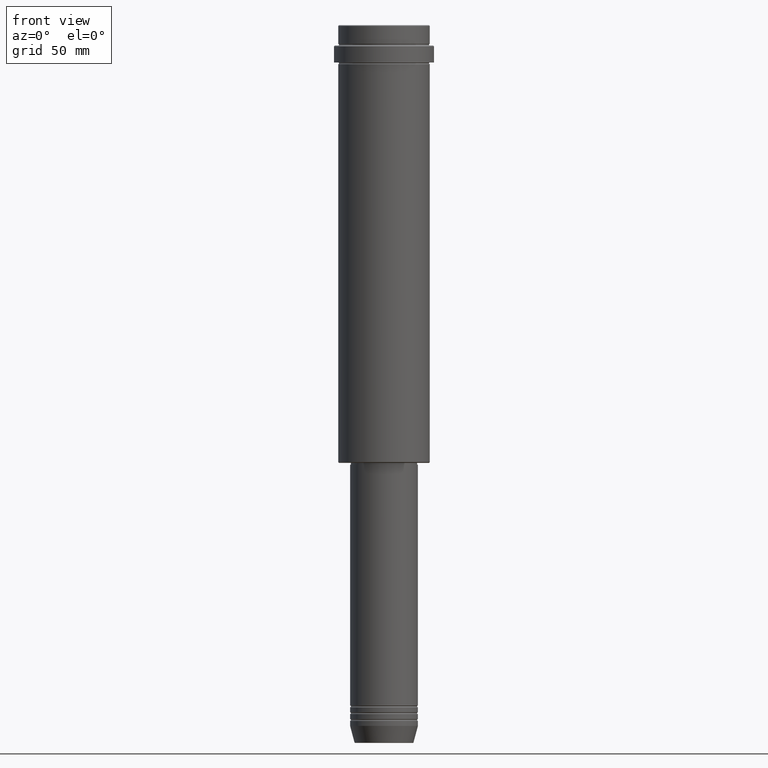
[diagram: clean part render]
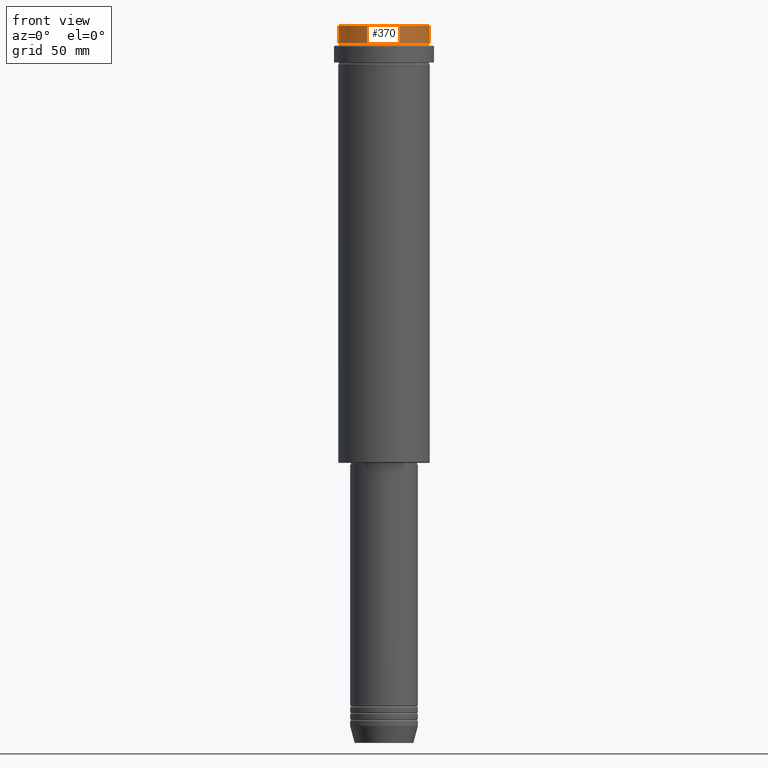
[diagram: same view with one face highlighted and labeled with its STEP entity id]
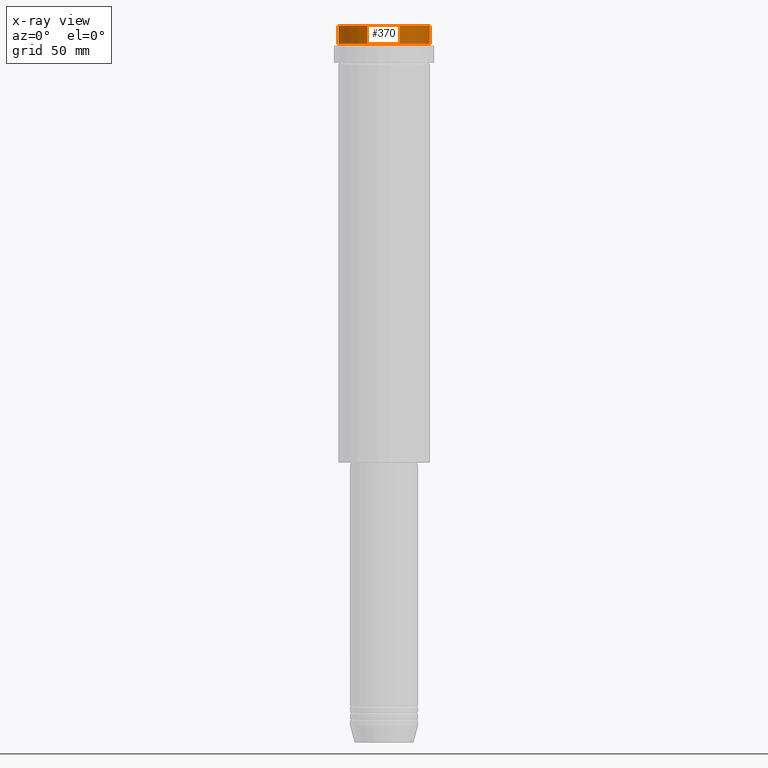
[diagram: x-ray of the same camera — body ghosted, the highlighted face saturated]
A machine part, front view. The second image highlights one B-rep face of the part: STEP entity #370.
The next image is the same camera in x-ray: the body ghosted, the highlighted face saturated — about 0% of this face is hidden behind the body in this view.
In plain terms, the highlighted cylindrical surface (partial cylindrical patch) has radius 27 mm, axis along (-0, -0, 1).
Its self-contained STEP definition (entity closure, byte-faithful):
#10 = CIRCLE ( 'NONE', #127, 27.00000000000000355 ) ;
#48 = ORIENTED_EDGE ( 'NONE', *, *, #204, .T. ) ;
#87 = ORIENTED_EDGE ( 'NONE', *, *, #907, .T. ) ;
#127 = AXIS2_PLACEMENT_3D ( 'NONE', #1240, #570, #679 ) ;
#202 = CARTESIAN_POINT ( 'NONE',  ( 27.00000000000000355, 0.000000000000000000, -0.4999999999999796274 ) ) ;
#204 = EDGE_CURVE ( 'NONE', #283, #271, #10, .T. ) ;
#227 = LINE ( 'NONE', #980, #735 ) ;
#257 = CARTESIAN_POINT ( 'NONE',  ( -27.00000000000000355, 3.306546357697854128E-15, -0.4999999999999796274 ) ) ;
#271 = VERTEX_POINT ( 'NONE', #1019 ) ;
#283 = VERTEX_POINT ( 'NONE', #377 ) ;
#290 = VECTOR ( 'NONE', #658, 1000.000000000000000 ) ;
#323 = FACE_OUTER_BOUND ( 'NONE', #716, .T. ) ;
#370 = ADVANCED_FACE ( 'NONE', ( #323 ), #753, .T. ) ;
#377 = CARTESIAN_POINT ( 'NONE',  ( -27.00000000000000355, 3.306546357697854128E-15, -11.00000000000000178 ) ) ;
#403 = VERTEX_POINT ( 'NONE', #202 ) ;
#404 = DIRECTION ( 'NONE',  ( 1.000000000000000000, 0.000000000000000000, 0.000000000000000000 ) ) ;
#416 = DIRECTION ( 'NONE',  ( 1.000000000000000000, 0.000000000000000000, 0.000000000000000000 ) ) ;
#441 = CARTESIAN_POINT ( 'NONE',  ( 27.00000000000000355, 0.000000000000000000, 0.000000000000000000 ) ) ;
#471 = AXIS2_PLACEMENT_3D ( 'NONE', #1050, #1169, #404 ) ;
#472 = LINE ( 'NONE', #441, #290 ) ;
#522 = EDGE_CURVE ( 'NONE', #283, #1119, #227, .T. ) ;
#547 = EDGE_CURVE ( 'NONE', #271, #403, #472, .T. ) ;
#570 = DIRECTION ( 'NONE',  ( -0.000000000000000000, -0.000000000000000000, 1.000000000000000000 ) ) ;
#658 = DIRECTION ( 'NONE',  ( -0.000000000000000000, -0.000000000000000000, 1.000000000000000000 ) ) ;
#679 = DIRECTION ( 'NONE',  ( 1.000000000000000000, 0.000000000000000000, 0.000000000000000000 ) ) ;
#716 = EDGE_LOOP ( 'NONE', ( #1102, #48, #872, #87 ) ) ;
#735 = VECTOR ( 'NONE', #987, 1000.000000000000000 ) ;
#753 = CYLINDRICAL_SURFACE ( 'NONE', #1295, 27.00000000000000355 ) ;
#872 = ORIENTED_EDGE ( 'NONE', *, *, #547, .T. ) ;
#907 = EDGE_CURVE ( 'NONE', #403, #1119, #1084, .T. ) ;
#980 = CARTESIAN_POINT ( 'NONE',  ( -27.00000000000000355, 3.306546357697854128E-15, 0.000000000000000000 ) ) ;
#987 = DIRECTION ( 'NONE',  ( -0.000000000000000000, -0.000000000000000000, 1.000000000000000000 ) ) ;
#1019 = CARTESIAN_POINT ( 'NONE',  ( 27.00000000000000355, 0.000000000000000000, -11.00000000000000178 ) ) ;
#1050 = CARTESIAN_POINT ( 'NONE',  ( 0.000000000000000000, 0.000000000000000000, -0.4999999999999796274 ) ) ;
#1084 = CIRCLE ( 'NONE', #471, 27.00000000000000355 ) ;
#1102 = ORIENTED_EDGE ( 'NONE', *, *, #522, .F. ) ;
#1119 = VERTEX_POINT ( 'NONE', #257 ) ;
#1169 = DIRECTION ( 'NONE',  ( 0.000000000000000000, 0.000000000000000000, -1.000000000000000000 ) ) ;
#1240 = CARTESIAN_POINT ( 'NONE',  ( 0.000000000000000000, 0.000000000000000000, -11.00000000000000178 ) ) ;
#1295 = AXIS2_PLACEMENT_3D ( 'NONE', #1399, #1306, #416 ) ;
#1306 = DIRECTION ( 'NONE',  ( -0.000000000000000000, -0.000000000000000000, 1.000000000000000000 ) ) ;
#1399 = CARTESIAN_POINT ( 'NONE',  ( 0.000000000000000000, 0.000000000000000000, 0.000000000000000000 ) ) ;